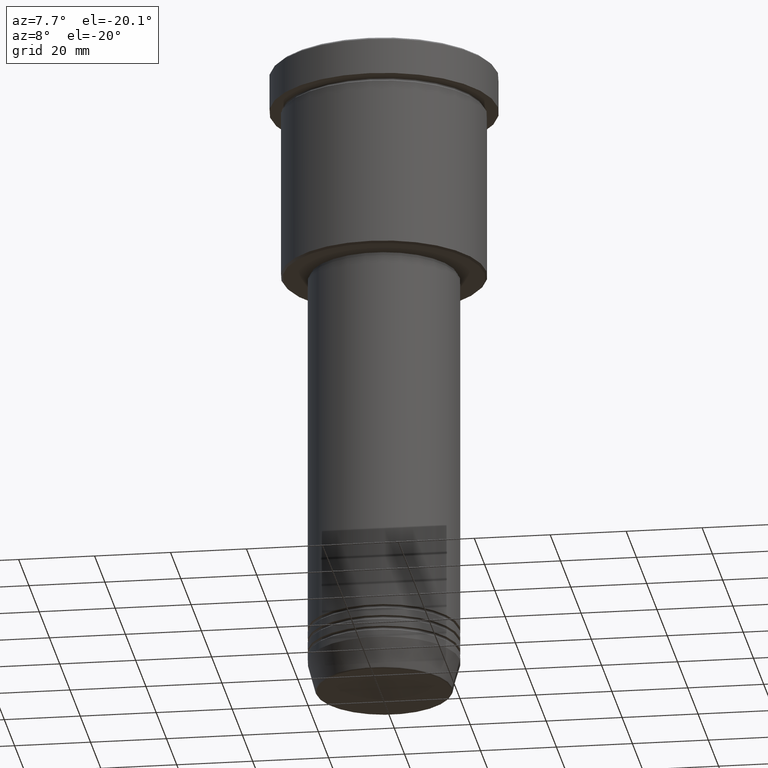
[diagram: clean part render]
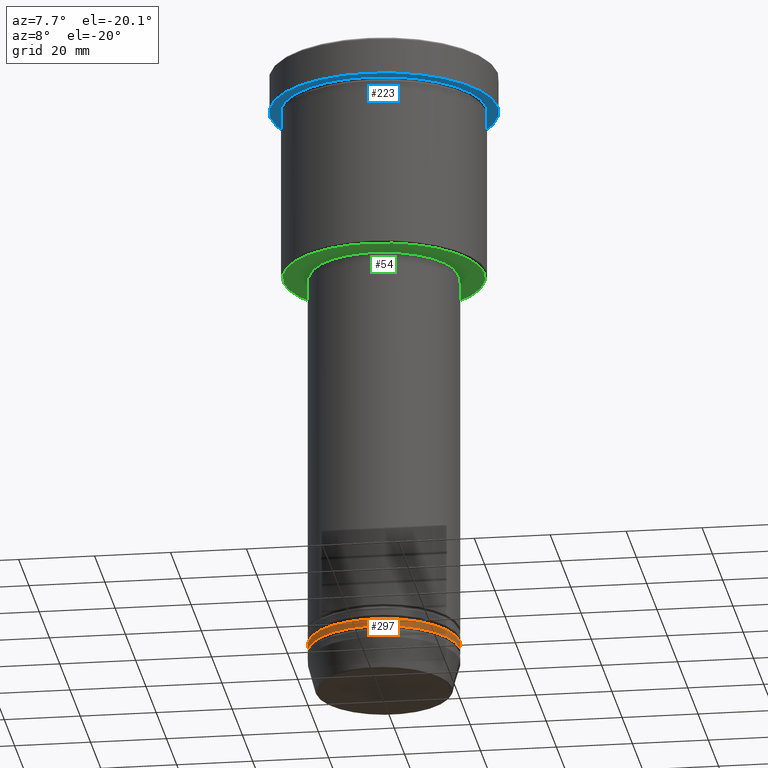
[diagram: same view with three faces highlighted in distinct colors, each labeled with its STEP entity id]
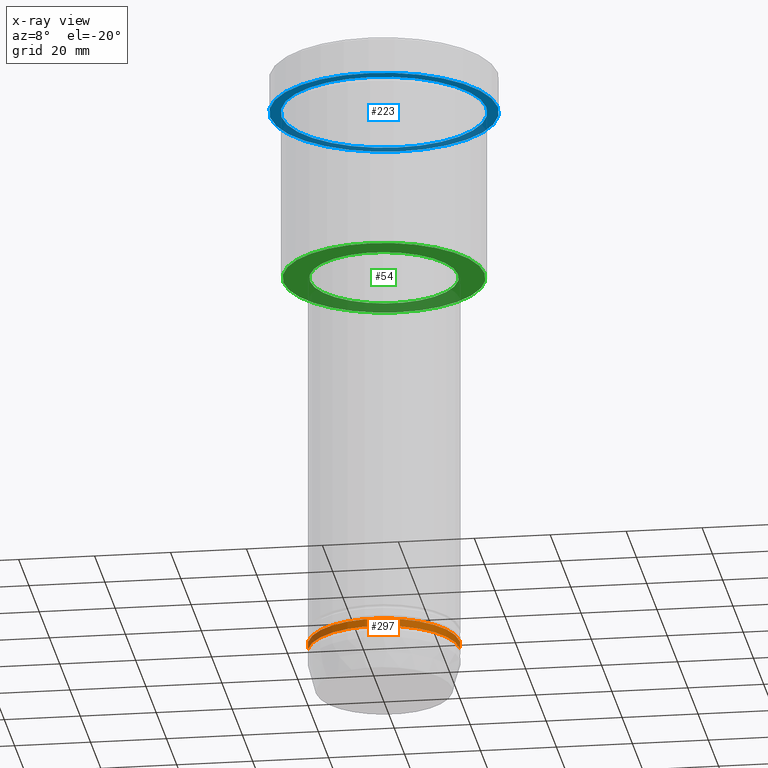
[diagram: x-ray of the same camera — body ghosted, the three highlighted faces saturated]
A machine part, auxiliary view with three faces highlighted in distinct colors.
The next image is the same camera in x-ray (body ghosted, the three faces saturated) — at least one of them is partly hidden behind the body in this view.
Their STEP definitions:

[orange] entity #297 — the highlighted cylindrical surface (partial cylindrical patch) has radius 20 mm, axis along (-0, -0, 1).
#22 = VERTEX_POINT ( 'NONE', #232 ) ;
#43 = CARTESIAN_POINT ( 'NONE',  ( 20.00000000000000000, 0.000000000000000000, -159.9999999999999716 ) ) ;
#124 = ORIENTED_EDGE ( 'NONE', *, *, #259, .T. ) ;
#154 = EDGE_CURVE ( 'NONE', #990, #404, #732, .T. ) ;
#189 = ORIENTED_EDGE ( 'NONE', *, *, #449, .F. ) ;
#195 = DIRECTION ( 'NONE',  ( -0.000000000000000000, -0.000000000000000000, 1.000000000000000000 ) ) ;
#216 = CYLINDRICAL_SURFACE ( 'NONE', #735, 20.00000000000000000 ) ;
#232 = CARTESIAN_POINT ( 'NONE',  ( 20.00000000000000000, 0.000000000000000000, -157.9999999999999716 ) ) ;
#259 = EDGE_CURVE ( 'NONE', #404, #22, #483, .T. ) ;
#261 = CARTESIAN_POINT ( 'NONE',  ( 0.000000000000000000, 0.000000000000000000, -159.9999999999999716 ) ) ;
#281 = ORIENTED_EDGE ( 'NONE', *, *, #154, .T. ) ;
#285 = DIRECTION ( 'NONE',  ( -0.000000000000000000, -0.000000000000000000, 1.000000000000000000 ) ) ;
#297 = ADVANCED_FACE ( 'NONE', ( #769 ), #216, .T. ) ;
#394 = DIRECTION ( 'NONE',  ( -0.000000000000000000, -0.000000000000000000, 1.000000000000000000 ) ) ;
#395 = VECTOR ( 'NONE', #1154, 1000.000000000000000 ) ;
#404 = VERTEX_POINT ( 'NONE', #43 ) ;
#449 = EDGE_CURVE ( 'NONE', #990, #1139, #1143, .T. ) ;
#483 = LINE ( 'NONE', #1005, #1129 ) ;
#532 = CARTESIAN_POINT ( 'NONE',  ( -20.00000000000000000, 2.449293598294706513E-15, 0.000000000000000000 ) ) ;
#590 = CARTESIAN_POINT ( 'NONE',  ( 0.000000000000000000, 0.000000000000000000, 0.000000000000000000 ) ) ;
#623 = CIRCLE ( 'NONE', #851, 20.00000000000000000 ) ;
#726 = DIRECTION ( 'NONE',  ( 1.000000000000000000, 0.000000000000000000, 0.000000000000000000 ) ) ;
#732 = CIRCLE ( 'NONE', #900, 20.00000000000000000 ) ;
#735 = AXIS2_PLACEMENT_3D ( 'NONE', #590, #285, #999 ) ;
#760 = EDGE_CURVE ( 'NONE', #1139, #22, #623, .T. ) ;
#769 = FACE_OUTER_BOUND ( 'NONE', #1003, .T. ) ;
#819 = DIRECTION ( 'NONE',  ( -0.000000000000000000, -0.000000000000000000, 1.000000000000000000 ) ) ;
#851 = AXIS2_PLACEMENT_3D ( 'NONE', #1023, #394, #1009 ) ;
#900 = AXIS2_PLACEMENT_3D ( 'NONE', #261, #819, #726 ) ;
#990 = VERTEX_POINT ( 'NONE', #1045 ) ;
#999 = DIRECTION ( 'NONE',  ( 1.000000000000000000, 0.000000000000000000, 0.000000000000000000 ) ) ;
#1003 = EDGE_LOOP ( 'NONE', ( #189, #281, #124, #1130 ) ) ;
#1005 = CARTESIAN_POINT ( 'NONE',  ( 20.00000000000000000, 0.000000000000000000, 0.000000000000000000 ) ) ;
#1009 = DIRECTION ( 'NONE',  ( 1.000000000000000000, 0.000000000000000000, 0.000000000000000000 ) ) ;
#1023 = CARTESIAN_POINT ( 'NONE',  ( 0.000000000000000000, 0.000000000000000000, -157.9999999999999716 ) ) ;
#1045 = CARTESIAN_POINT ( 'NONE',  ( -20.00000000000000000, 2.449293598294706513E-15, -159.9999999999999716 ) ) ;
#1093 = CARTESIAN_POINT ( 'NONE',  ( -20.00000000000000000, 2.449293598294706513E-15, -157.9999999999999716 ) ) ;
#1129 = VECTOR ( 'NONE', #195, 1000.000000000000000 ) ;
#1130 = ORIENTED_EDGE ( 'NONE', *, *, #760, .F. ) ;
#1139 = VERTEX_POINT ( 'NONE', #1093 ) ;
#1143 = LINE ( 'NONE', #532, #395 ) ;
#1154 = DIRECTION ( 'NONE',  ( -0.000000000000000000, -0.000000000000000000, 1.000000000000000000 ) ) ;

[blue] entity #223 — the highlighted planar face has unit normal (0, 0, -1).
#1 = VERTEX_POINT ( 'NONE', #956 ) ;
#30 = ORIENTED_EDGE ( 'NONE', *, *, #1066, .T. ) ;
#46 = AXIS2_PLACEMENT_3D ( 'NONE', #253, #952, #783 ) ;
#88 = CARTESIAN_POINT ( 'NONE',  ( 0.000000000000000000, 30.00000000000000000, -9.999999999999992895 ) ) ;
#161 = AXIS2_PLACEMENT_3D ( 'NONE', #88, #994, #528 ) ;
#192 = ORIENTED_EDGE ( 'NONE', *, *, #428, .F. ) ;
#223 = ADVANCED_FACE ( 'NONE', ( #903, #344 ), #1065, .T. ) ;
#253 = CARTESIAN_POINT ( 'NONE',  ( 0.000000000000000000, 0.000000000000000000, -9.999999999999992895 ) ) ;
#263 = CARTESIAN_POINT ( 'NONE',  ( 27.00000000000000355, 3.306546357697854128E-15, -9.999999999999992895 ) ) ;
#344 = FACE_OUTER_BOUND ( 'NONE', #636, .T. ) ;
#379 = AXIS2_PLACEMENT_3D ( 'NONE', #804, #400, #1114 ) ;
#400 = DIRECTION ( 'NONE',  ( -0.000000000000000000, -0.000000000000000000, 1.000000000000000000 ) ) ;
#421 = AXIS2_PLACEMENT_3D ( 'NONE', #951, #710, #525 ) ;
#428 = EDGE_CURVE ( 'NONE', #986, #1, #1089, .T. ) ;
#442 = CIRCLE ( 'NONE', #758, 27.00000000000000355 ) ;
#472 = ORIENTED_EDGE ( 'NONE', *, *, #911, .T. ) ;
#513 = CARTESIAN_POINT ( 'NONE',  ( -30.00000000000000000, 3.673940397442059178E-15, -9.999999999999992895 ) ) ;
#525 = DIRECTION ( 'NONE',  ( -1.000000000000000000, 0.000000000000000000, 0.000000000000000000 ) ) ;
#528 = DIRECTION ( 'NONE',  ( -1.000000000000000000, 0.000000000000000000, -0.000000000000000000 ) ) ;
#546 = CARTESIAN_POINT ( 'NONE',  ( 0.000000000000000000, 0.000000000000000000, -9.999999999999992895 ) ) ;
#634 = VERTEX_POINT ( 'NONE', #263 ) ;
#636 = EDGE_LOOP ( 'NONE', ( #865, #192 ) ) ;
#637 = CARTESIAN_POINT ( 'NONE',  ( -27.00000000000000355, 0.000000000000000000, -9.999999999999992895 ) ) ;
#710 = DIRECTION ( 'NONE',  ( -0.000000000000000000, -0.000000000000000000, 1.000000000000000000 ) ) ;
#758 = AXIS2_PLACEMENT_3D ( 'NONE', #546, #1162, #816 ) ;
#783 = DIRECTION ( 'NONE',  ( 1.000000000000000000, 0.000000000000000000, 0.000000000000000000 ) ) ;
#804 = CARTESIAN_POINT ( 'NONE',  ( 0.000000000000000000, 0.000000000000000000, -9.999999999999992895 ) ) ;
#816 = DIRECTION ( 'NONE',  ( -1.000000000000000000, 0.000000000000000000, 0.000000000000000000 ) ) ;
#864 = EDGE_LOOP ( 'NONE', ( #30, #472 ) ) ;
#865 = ORIENTED_EDGE ( 'NONE', *, *, #1160, .F. ) ;
#903 = FACE_BOUND ( 'NONE', #864, .T. ) ;
#911 = EDGE_CURVE ( 'NONE', #634, #1025, #1113, .T. ) ;
#951 = CARTESIAN_POINT ( 'NONE',  ( 0.000000000000000000, 0.000000000000000000, -9.999999999999992895 ) ) ;
#952 = DIRECTION ( 'NONE',  ( -0.000000000000000000, -0.000000000000000000, 1.000000000000000000 ) ) ;
#956 = CARTESIAN_POINT ( 'NONE',  ( 30.00000000000000000, 0.000000000000000000, -9.999999999999992895 ) ) ;
#986 = VERTEX_POINT ( 'NONE', #513 ) ;
#994 = DIRECTION ( 'NONE',  ( 0.000000000000000000, 0.000000000000000000, -1.000000000000000000 ) ) ;
#1025 = VERTEX_POINT ( 'NONE', #637 ) ;
#1056 = CIRCLE ( 'NONE', #379, 30.00000000000000000 ) ;
#1065 = PLANE ( 'NONE',  #161 ) ;
#1066 = EDGE_CURVE ( 'NONE', #1025, #634, #442, .T. ) ;
#1089 = CIRCLE ( 'NONE', #46, 30.00000000000000000 ) ;
#1113 = CIRCLE ( 'NONE', #421, 27.00000000000000355 ) ;
#1114 = DIRECTION ( 'NONE',  ( 1.000000000000000000, 0.000000000000000000, 0.000000000000000000 ) ) ;
#1160 = EDGE_CURVE ( 'NONE', #1, #986, #1056, .T. ) ;
#1162 = DIRECTION ( 'NONE',  ( -0.000000000000000000, -0.000000000000000000, 1.000000000000000000 ) ) ;

[green] entity #54 — the highlighted planar face has unit normal (0, 0, -1).
#5 = CIRCLE ( 'NONE', #454, 19.50000000000000000 ) ;
#23 = ORIENTED_EDGE ( 'NONE', *, *, #457, .T. ) ;
#35 = DIRECTION ( 'NONE',  ( -1.000000000000000000, 0.000000000000000000, -0.000000000000000000 ) ) ;
#52 = FACE_OUTER_BOUND ( 'NONE', #834, .T. ) ;
#54 = ADVANCED_FACE ( 'NONE', ( #52, #147 ), #1140, .T. ) ;
#79 = VERTEX_POINT ( 'NONE', #944 ) ;
#143 = DIRECTION ( 'NONE',  ( 0.000000000000000000, 0.000000000000000000, -1.000000000000000000 ) ) ;
#147 = FACE_BOUND ( 'NONE', #1120, .T. ) ;
#218 = CIRCLE ( 'NONE', #716, 26.49999999999998224 ) ;
#326 = DIRECTION ( 'NONE',  ( -1.000000000000000000, 0.000000000000000000, 0.000000000000000000 ) ) ;
#328 = DIRECTION ( 'NONE',  ( -1.000000000000000000, 0.000000000000000000, 0.000000000000000000 ) ) ;
#361 = VERTEX_POINT ( 'NONE', #859 ) ;
#366 = DIRECTION ( 'NONE',  ( -0.000000000000000000, -0.000000000000000000, 1.000000000000000000 ) ) ;
#412 = DIRECTION ( 'NONE',  ( 0.000000000000000000, 0.000000000000000000, -1.000000000000000000 ) ) ;
#444 = CARTESIAN_POINT ( 'NONE',  ( -26.49999999999998224, 3.275930187719168763E-15, -55.99999999999999289 ) ) ;
#454 = AXIS2_PLACEMENT_3D ( 'NONE', #600, #698, #801 ) ;
#456 = DIRECTION ( 'NONE',  ( 1.000000000000000000, 0.000000000000000000, 0.000000000000000000 ) ) ;
#457 = EDGE_CURVE ( 'NONE', #361, #529, #218, .T. ) ;
#501 = ORIENTED_EDGE ( 'NONE', *, *, #1048, .T. ) ;
#529 = VERTEX_POINT ( 'NONE', #444 ) ;
#550 = EDGE_CURVE ( 'NONE', #858, #79, #5, .T. ) ;
#600 = CARTESIAN_POINT ( 'NONE',  ( 0.000000000000000000, 0.000000000000000000, -55.99999999999999289 ) ) ;
#619 = CARTESIAN_POINT ( 'NONE',  ( 0.000000000000000000, 0.000000000000000000, -55.99999999999999289 ) ) ;
#698 = DIRECTION ( 'NONE',  ( -0.000000000000000000, -0.000000000000000000, 1.000000000000000000 ) ) ;
#701 = CIRCLE ( 'NONE', #1135, 19.50000000000000000 ) ;
#716 = AXIS2_PLACEMENT_3D ( 'NONE', #619, #143, #328 ) ;
#720 = CARTESIAN_POINT ( 'NONE',  ( 0.000000000000000000, 0.000000000000000000, -55.99999999999999289 ) ) ;
#746 = CARTESIAN_POINT ( 'NONE',  ( -19.50000000000000000, 2.388061258337338939E-15, -55.99999999999999289 ) ) ;
#801 = DIRECTION ( 'NONE',  ( 1.000000000000000000, 0.000000000000000000, 0.000000000000000000 ) ) ;
#834 = EDGE_LOOP ( 'NONE', ( #23, #1053 ) ) ;
#837 = ORIENTED_EDGE ( 'NONE', *, *, #550, .T. ) ;
#858 = VERTEX_POINT ( 'NONE', #746 ) ;
#859 = CARTESIAN_POINT ( 'NONE',  ( 26.49999999999998224, 0.000000000000000000, -55.99999999999999289 ) ) ;
#871 = CARTESIAN_POINT ( 'NONE',  ( 0.000000000000000000, 27.00000000000000355, -55.99999999999999289 ) ) ;
#896 = EDGE_CURVE ( 'NONE', #529, #361, #1069, .T. ) ;
#905 = AXIS2_PLACEMENT_3D ( 'NONE', #1142, #1146, #326 ) ;
#944 = CARTESIAN_POINT ( 'NONE',  ( 19.50000000000000000, 0.000000000000000000, -55.99999999999999289 ) ) ;
#973 = AXIS2_PLACEMENT_3D ( 'NONE', #871, #412, #35 ) ;
#1048 = EDGE_CURVE ( 'NONE', #79, #858, #701, .T. ) ;
#1053 = ORIENTED_EDGE ( 'NONE', *, *, #896, .T. ) ;
#1069 = CIRCLE ( 'NONE', #905, 26.49999999999998224 ) ;
#1120 = EDGE_LOOP ( 'NONE', ( #501, #837 ) ) ;
#1135 = AXIS2_PLACEMENT_3D ( 'NONE', #720, #366, #456 ) ;
#1140 = PLANE ( 'NONE',  #973 ) ;
#1142 = CARTESIAN_POINT ( 'NONE',  ( 0.000000000000000000, 0.000000000000000000, -55.99999999999999289 ) ) ;
#1146 = DIRECTION ( 'NONE',  ( 0.000000000000000000, 0.000000000000000000, -1.000000000000000000 ) ) ;